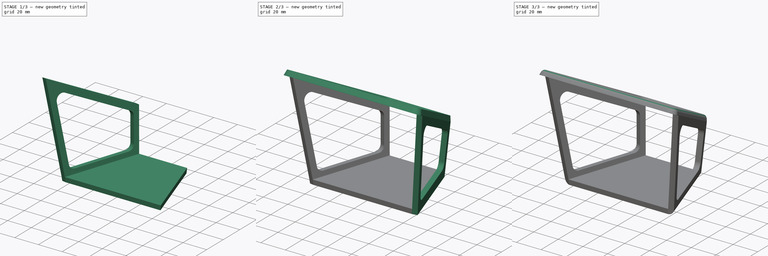
[diagram: build sequence overview — one tinted view per stage of 3, left to right]
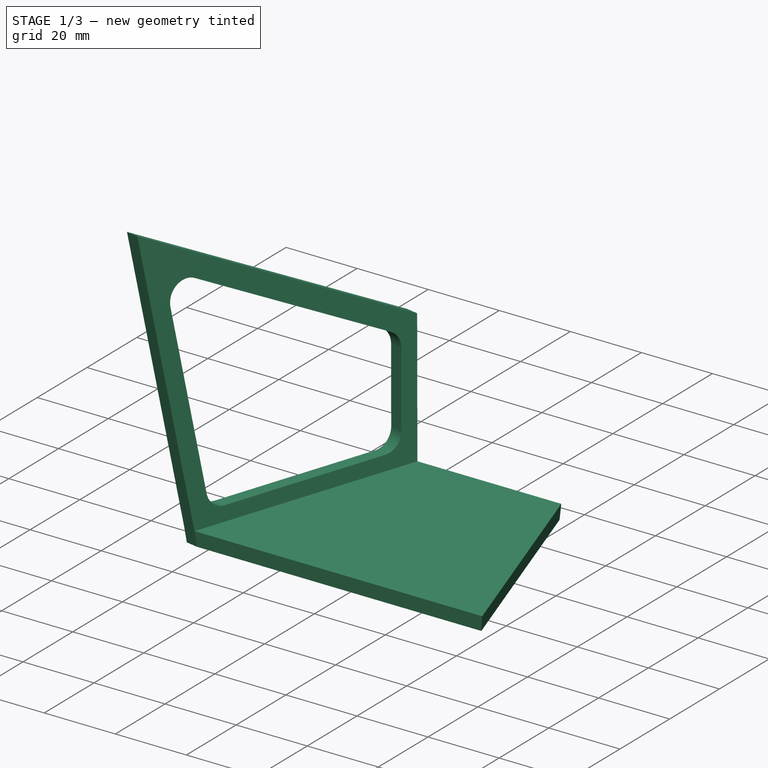
[diagram: stage 1 of 3 — iso view after this stage's code; geometry added in this stage tinted green]
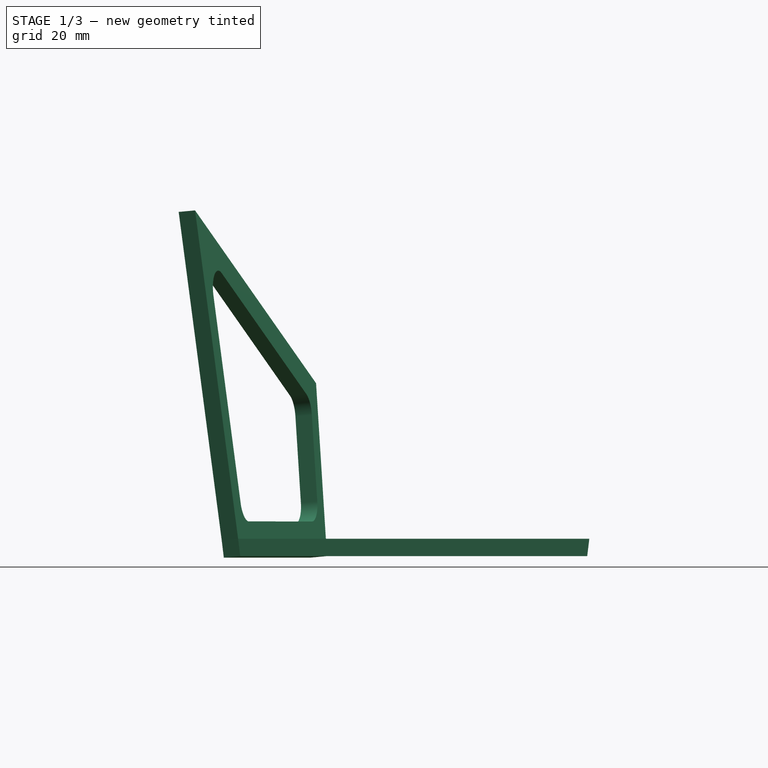
[diagram: stage 1 of 3 — front view after this stage's code; geometry added in this stage tinted green]
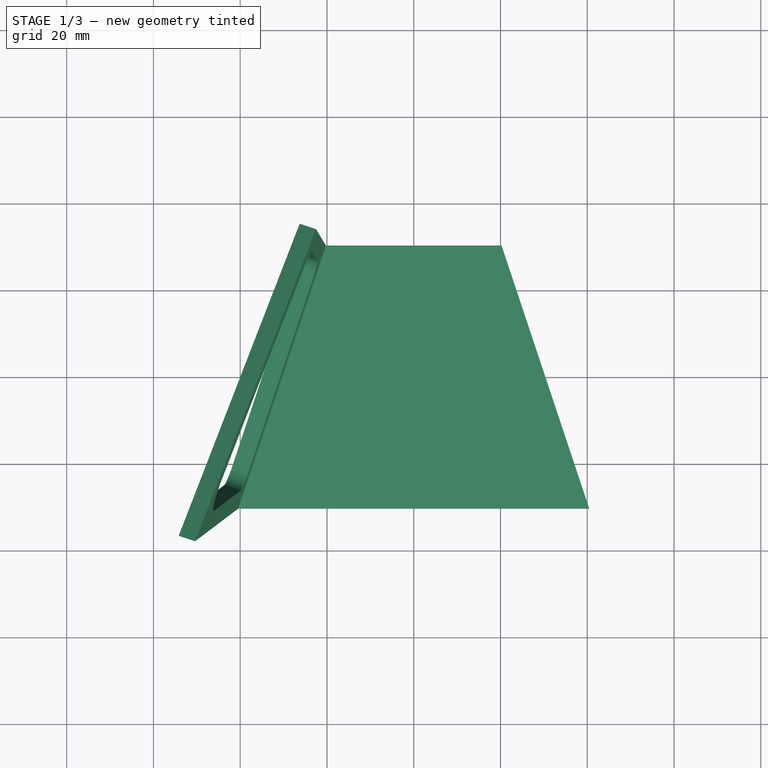
[diagram: stage 1 of 3 — top view after this stage's code; geometry added in this stage tinted green]
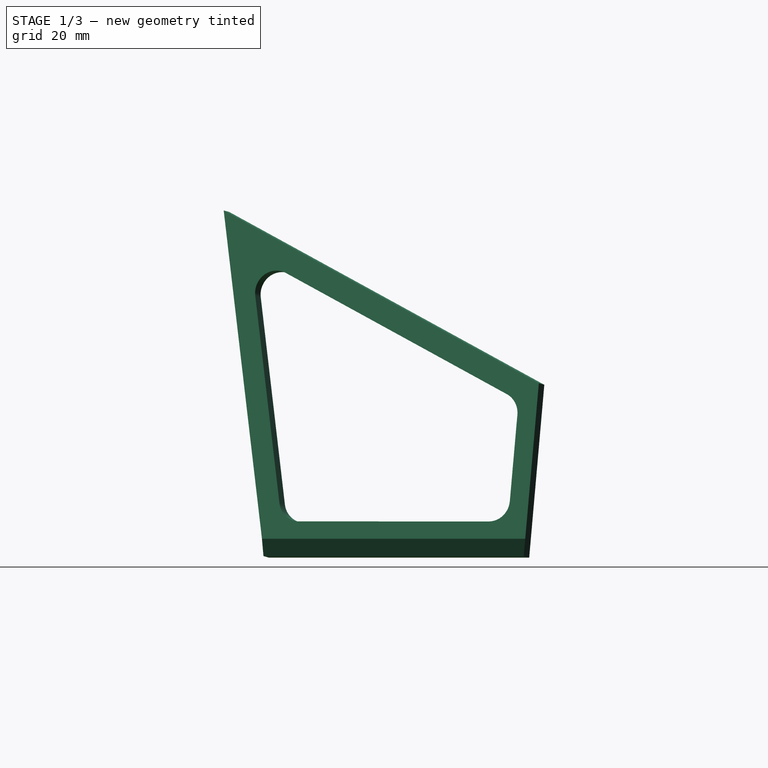
[diagram: stage 1 of 3 — right view after this stage's code; geometry added in this stage tinted green]
FCSTD DOCUMENT  (FreeCAD 0.20R29177 +426 (Git))
Label: TVHead
License: All rights reserved
LicenseURL: http://en.wikipedia.org/wiki/All_rights_reserved
objects: Sketcher::SketchObject×4, PartDesign::Pad×4, PartDesign::Plane×3, PartDesign::Fillet×2, Spreadsheet::Sheet×1, PartDesign::Body×1
note: 20 computed .brp shape members not serialized (recipe doc carries the construction recipe); baked Part::Feature solids carry a one-line shape summary decoded from their .brp

FEATURE [Sketcher::SketchObject] Sketch
  FullyConstrained = true
  MapMode = 5
  Support = -> [XY_Plane]
  expr: Constraints[6] = Spreadsheet.baseBackWidth
  expr: Constraints[7] = Spreadsheet.baseFrontWidth
  expr: Constraints[8] = Spreadsheet.baseDepth
  expr: Constraints[9] = Spreadsheet.baseDepth / 2
  sketch-geometry (4):
    g0: LineSegment StartX=-20 StartY=30 StartZ=0 EndX=20 EndY=30 EndZ=0
    g1: LineSegment StartX=20 StartY=30 StartZ=0 EndX=40 EndY=-30 EndZ=0
    g2: LineSegment StartX=40 StartY=-30 StartZ=0 EndX=-40 EndY=-30 EndZ=0
    g3: LineSegment StartX=-40 StartY=-30 StartZ=0 EndX=-20 EndY=30 EndZ=0
  constraints (10):
    c: Coincident(g0,g1)
    c: Coincident(g1,g2)
    c: Coincident(g2,g3)
    c: Coincident(g3,g0)
    c: Symmetric(g0,g0,g-2)
    c: Symmetric(g2,g1,g-2)
    c: DistanceX(g0,g0) = 40
    c: DistanceX(g2,g2) = 80
    c: DistanceY(g2,g0) = 60
    c: DistanceY(g-1,g0) = 30
FEATURE [Spreadsheet::Sheet] Spreadsheet
  cells = A2=baseBackWidth; B2(baseBackWidth)=40; A3=baseBackHeight; B3(baseBackHeight)=40; A4=baseFrontWidth; B4(baseFrontWidth)=80; A5=baseFrontHeight; B5(baseFrontHeight)=80; A6=baseDepth; B6(baseDepth)=60; A7=thickness; B7(thickness)=4; A8=topOvershoot; B8(topOvershoot)=12
FEATURE [PartDesign::Pad] Pad  label="basePad"
  Direction = (0,0,1)
  Length = 4
  Length2 = 10
  Profile = -> Sketch
  ReferenceAxis = -> Sketch [N_Axis]
  TaperAngle = 5
  Type = 0
  expr: Length = Spreadsheet.thickness
FEATURE [PartDesign::Plane] DatumPlane
  Length = 145.375
  MapMode = 45
  Placement = pos=(-30.1848,5.3e-15,2.00387) rot=(0.732046,-0.118838,-0.67081;3.35838rad)
  ResizeMode = 0
  Support = -> [Pad]
  Width = 135.937
FEATURE [Sketcher::SketchObject] Sketch001
  ExternalGeometry = -> [Pad]
  FullyConstrained = true
  MapMode = 5
  Placement = pos=(-30.1848,7.1e-15,2.00387) rot=(0.732046,-0.118838,-0.67081;3.35838rad)
  Support = -> [DatumPlane]
  expr: Constraints[11] = Spreadsheet.baseBackHeight
  expr: Constraints[12] = Spreadsheet.baseFrontHeight
  expr: Constraints[13] = Spreadsheet.topOvershoot
  expr: Constraints[26] = Spreadsheet.thickness
  expr: Constraints[27] = Spreadsheet.thickness
  expr: Constraints[32] = Spreadsheet.thickness
  sketch-geometry (14):
    g0: LineSegment StartX=2.00784 StartY=-31.6814 StartZ=0 EndX=2.01519 EndY=31.5641 EndZ=0
    g1: LineSegment StartX=2.01519 StartY=31.5641 StartZ=0 EndX=-2.00003 EndY=32.0501 EndZ=0
    g2: LineSegment StartX=-2.00003 StartY=32.0501 StartZ=0 EndX=-77.9848 EndY=43.5641 EndZ=0
    g3: LineSegment StartX=-77.9848 StartY=43.5641 StartZ=0 EndX=-37.9922 EndY=-34.1895 EndZ=0
    g4: LineSegment StartX=-37.9922 StartY=-34.1895 StartZ=0 EndX=-2.00747 EndY=-31.9332 EndZ=0
    g5: LineSegment StartX=-2.00747 StartY=-31.9332 StartZ=0 EndX=2.00784 EndY=-31.6814 EndZ=0
    g6: LineSegment StartX=-58.2389 StartY=35.3133 StartZ=0 EndX=-10.3069 EndY=28.0501 EndZ=0
    g7: LineSegment StartX=-6.00747 StartY=23.0501 StartZ=0 EndX=-6.00747 EndY=-22.9332 EndZ=0
    g8: LineSegment StartX=-10.7038 StartY=-27.9332 StartZ=0 EndX=-30.7038 EndY=-29.1872 EndZ=0
    g9: LineSegment StartX=-35.4723 StartY=-26.4787 StartZ=0 EndX=-63.4936 EndY=28.0002 EndZ=0
    g10: ArcOfCircle CenterX=-58.9965 CenterY=30.3133 CenterZ=0 NormalX=0 NormalY=0 NormalZ=1 AngleXU=0 Radius=5.05708 StartAngle=1.42041 EndAngle=3.61666
    g11: ArcOfCircle CenterX=-11.0645 CenterY=23.0501 CenterZ=0 NormalX=0 NormalY=0 NormalZ=1 AngleXU=0 Radius=5.05708 StartAngle=0 EndAngle=1.42041
    g12: ArcOfCircle CenterX=-11.0173 CenterY=-22.9332 CenterZ=0 NormalX=0 NormalY=0 NormalZ=1 AngleXU=0 Radius=5.00982 StartAngle=4.77501 EndAngle=6.28319
    g13: ArcOfCircle CenterX=-31.0173 CenterY=-24.1872 CenterZ=0 NormalX=0 NormalY=0 NormalZ=1 AngleXU=0 Radius=5.00982 StartAngle=3.61666 EndAngle=4.77501
  constraints (34):
    c: Coincident(g0,g-5)
    c: Coincident(g0,g-3)
    c: Coincident(g0,g1)
    c: Coincident(g1,g-4)
    c: Coincident(g1,g2)
    c: Coincident(g2,g3)
    c: Coincident(g3,g4)
    c: Coincident(g4,g-6)
    c: Coincident(g4,g5)
    c: Coincident(g5,g0)
    c: Parallel(g4,g5)
    c: DistanceX(g3,g0) = 40
    c: DistanceX(g2,g0) = 80
    c: DistanceY(g0,g2) = 12
    c: Vertical(g7)
    c: Tangent(g6,g10) = 1.5708
    c: Tangent(g9,g10) = 1.5708
    c: Tangent(g6,g11) = 1.5708
    c: Tangent(g7,g11) = 1.5708
    c: Tangent(g7,g12) = 1.5708
    c: Tangent(g8,g12) = 1.5708
    c: Tangent(g8,g13) = 1.5708
    c: Tangent(g9,g13) = 1.5708
    c: Parallel(g8,g4)
    c: Parallel(g6,g2)
    c: Parallel(g9,g3)
    c: DistanceX(g7,g4) = 4
    c: DistanceY(g4,g8) = 4
    c: DistanceY(g8,g13) = 5
    c: DistanceY(g8,g12) = 5
    c: DistanceY(g10,g6) = 5
    c: DistanceY(g11,g6) = 5
    c: DistanceY(g6,g1) = 4
    c: DistanceX(g13,g12) = 20
FEATURE [PartDesign::Pad] Pad001
  BaseFeature = -> Pad
  Direction = (-0.945073,0.315024,-0.0871557)
  Length = 4
  Length2 = 10
  Profile = -> Sketch001
  ReferenceAxis = -> Sketch001 [N_Axis]
  Type = 0
  expr: Length = Spreadsheet.thickness
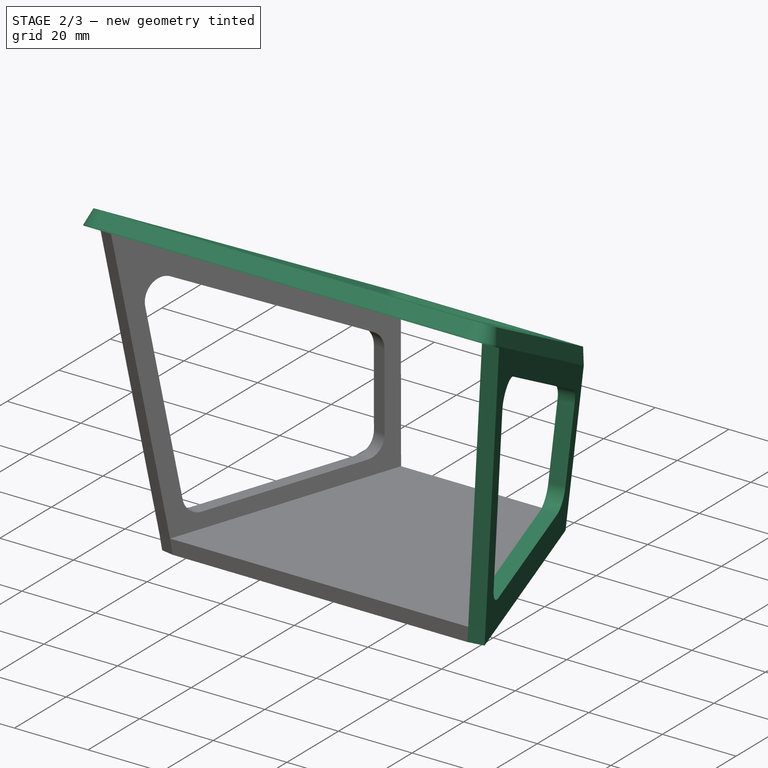
[diagram: stage 2 of 3 — iso view after this stage's code; geometry added in this stage tinted green]
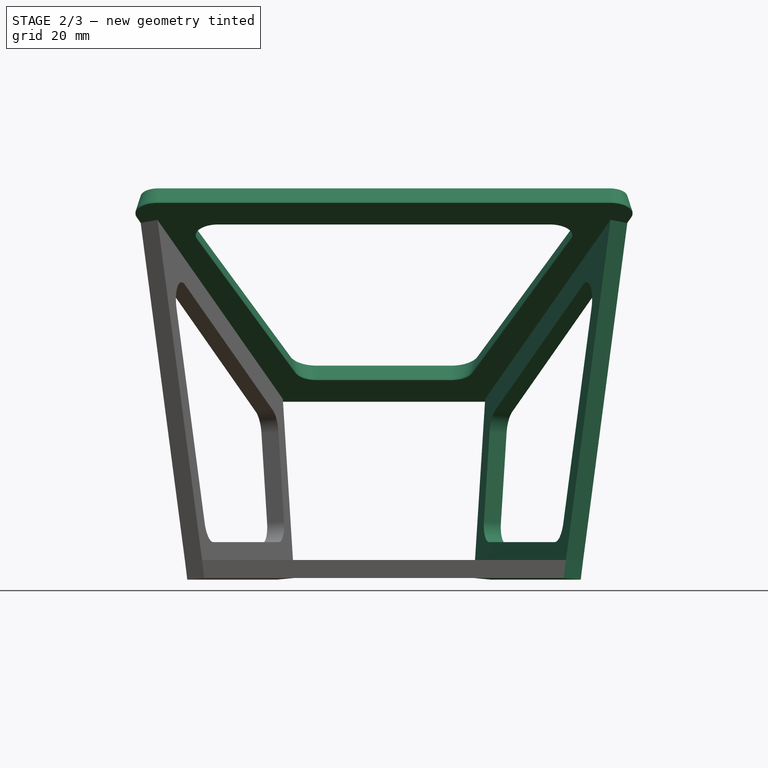
[diagram: stage 2 of 3 — front view after this stage's code; geometry added in this stage tinted green]
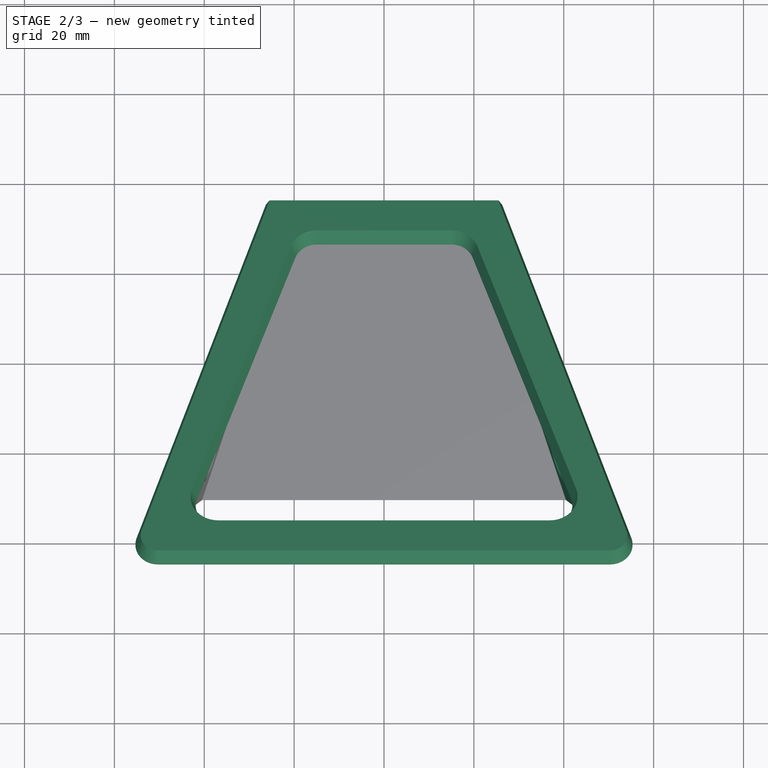
[diagram: stage 2 of 3 — top view after this stage's code; geometry added in this stage tinted green]
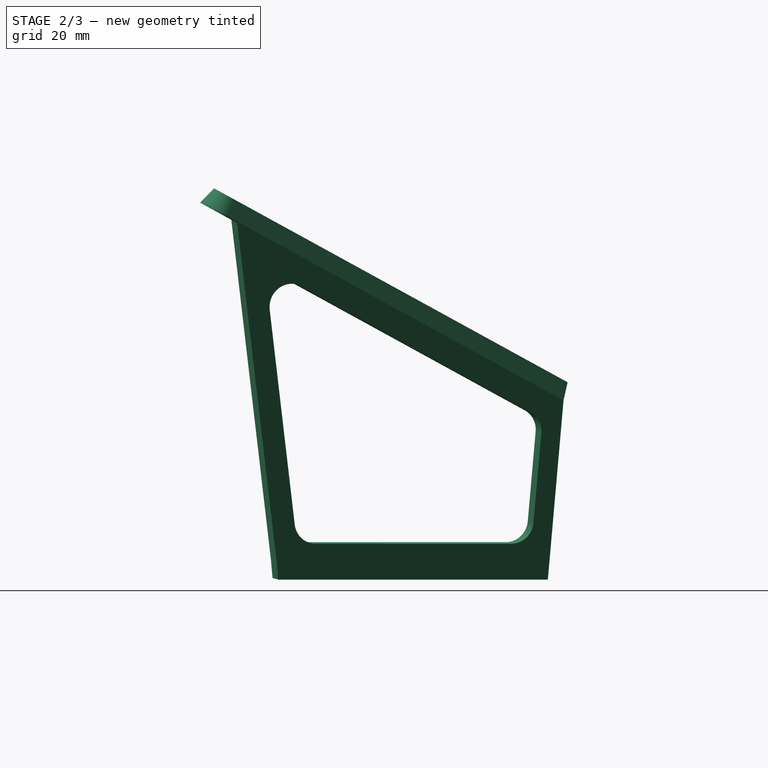
[diagram: stage 2 of 3 — right view after this stage's code; geometry added in this stage tinted green]
FEATURE [PartDesign::Plane] DatumPlane001
  Length = 145.375
  MapMode = 45
  Placement = pos=(30.1848,-1.8e-15,2.00387) rot=(0.732046,0.118838,0.67081;3.35838rad)
  ResizeMode = 0
  Support = -> [Pad001]
  Width = 135.937
FEATURE [Sketcher::SketchObject] Sketch002
  ExternalGeometry = -> [Pad001]
  FullyConstrained = true
  MapMode = 5
  Placement = pos=(30.1848,1.8e-15,2.00387) rot=(0.732046,0.118838,0.67081;3.35838rad)
  Support = -> [DatumPlane001]
  expr: Constraints[10] = Spreadsheet.topOvershoot
  expr: Constraints[11] = Spreadsheet.baseFrontHeight
  expr: Constraints[12] = Spreadsheet.baseBackHeight
  expr: Constraints[30] = Spreadsheet.thickness
  expr: Constraints[31] = Spreadsheet.thickness
  expr: Constraints[33] = Spreadsheet.thickness
  sketch-geometry (14):
    g0: LineSegment StartX=-2.01519 StartY=31.5641 StartZ=0 EndX=-2.00784 EndY=-31.6814 EndZ=0
    g1: LineSegment StartX=-2.00784 StartY=-31.6814 StartZ=0 EndX=2.00747 EndY=-31.9332 EndZ=0
    g2: LineSegment StartX=2.00747 StartY=-31.9332 StartZ=0 EndX=37.9922 EndY=-34.1895 EndZ=0
    g3: LineSegment StartX=37.9922 StartY=-34.1895 StartZ=0 EndX=77.9848 EndY=43.5641 EndZ=0
    g4: LineSegment StartX=77.9848 StartY=43.5641 StartZ=0 EndX=2.00003 EndY=32.0501 EndZ=0
    g5: LineSegment StartX=2.00003 StartY=32.0501 StartZ=0 EndX=-2.01519 EndY=31.5641 EndZ=0
    g6: LineSegment StartX=63.5316 StartY=28.1048 StartZ=0 EndX=35.4538 EndY=-26.484 EndZ=0
    g7: LineSegment StartX=30.6946 StartY=-29.1872 StartZ=0 EndX=10.6946 EndY=-27.9332 EndZ=0
    g8: LineSegment StartX=6.00747 StartY=-22.943 StartZ=0 EndX=6.00747 EndY=23.1065 EndZ=0
    g9: LineSegment StartX=10.2584 StartY=28.0501 StartZ=0 EndX=58.3362 EndY=35.3354 EndZ=0
    g10: ArcOfCircle CenterX=59.0853 CenterY=30.3918 CenterZ=0 NormalX=0 NormalY=0 NormalZ=1 AngleXU=0 Radius=5 StartAngle=5.80812 EndAngle=8.00437
    g11: ArcOfCircle CenterX=11.0075 CenterY=23.1065 CenterZ=0 NormalX=0 NormalY=0 NormalZ=1 AngleXU=0 Radius=5 StartAngle=1.72118 EndAngle=3.14159
    g12: ArcOfCircle CenterX=11.0075 CenterY=-22.943 CenterZ=0 NormalX=0 NormalY=0 NormalZ=1 AngleXU=0 Radius=5 StartAngle=3.14159 EndAngle=4.64977
    g13: ArcOfCircle CenterX=31.0075 CenterY=-24.197 CenterZ=0 NormalX=0 NormalY=0 NormalZ=1 AngleXU=0 Radius=5 StartAngle=4.64977 EndAngle=5.80812
  constraints (34):
    c: Coincident(g0,g-4)
    c: Coincident(g0,g-6)
    c: Coincident(g0,g1)
    c: Coincident(g1,g-5)
    c: Coincident(g1,g2)
    c: Coincident(g2,g3)
    c: Coincident(g3,g4)
    c: Coincident(g4,g-3)
    c: Coincident(g4,g5)
    c: Coincident(g5,g0)
    c: DistanceY(g0,g3) = 12
    c: DistanceX(g0,g3) = 80
    c: DistanceX(g0,g2) = 40
    c: Parallel(g1,g2)
    c: Vertical(g8)
    c: Tangent(g6,g10) = 1.5708
    c: Tangent(g9,g10) = 1.5708
    c: Tangent(g9,g11) = 1.5708
    c: Tangent(g8,g11) = 1.5708
    c: Tangent(g8,g12) = 1.5708
    c: Tangent(g7,g12) = 1.5708
    c: Tangent(g7,g13) = 1.5708
    c: Tangent(g6,g13) = 1.5708
    c: Distance(g11,g9) = 5
    c: Distance(g10,g9) = 5
    c: Distance(g12,g8) = 5
    c: Distance(g13,g7) = 5
    c: Parallel(g7,g2)
    c: Parallel(g6,g3)
    c: Parallel(g9,g4)
    c: DistanceX(g1,g8) = 4
    c: DistanceY(g1,g7) = 4
    c: DistanceX(g12,g13) = 20
    c: DistanceY(g9,g4) = 4
FEATURE [PartDesign::Pad] Pad002
  BaseFeature = -> Pad001
  Direction = (0.945073,0.315024,-0.0871557)
  Length = 4
  Length2 = 10
  Profile = -> Sketch002
  ReferenceAxis = -> Sketch002 [N_Axis]
  Type = 0
  expr: Length = Spreadsheet.thickness
FEATURE [PartDesign::Plane] DatumPlane002
  Length = 134.08
  MapMode = 13
  Placement = pos=(-8.76434,-13.6915,66.0652) rot=(0,0.248209,0.968706;3.14159rad)
  ResizeMode = 0
  Support = -> [Pad002]
  Width = 148.535
FEATURE [Sketcher::SketchObject] Sketch003
  ExternalGeometry = -> [Pad002]
  FullyConstrained = true
  MapMode = 5
  Placement = pos=(-8.76434,-13.6915,66.0652) rot=(0,0.248209,0.968706;3.14159rad)
  Support = -> [DatumPlane002]
  expr: Constraints[44] = Spreadsheet.baseDepth * 1.2
  expr: Constraints[45] = Spreadsheet.baseBackWidth * 0.75
  sketch-geometry (24):
    g0: LineSegment StartX=-59.0667 StartY=36.7552 StartZ=0 EndX=41.538 EndY=36.7552 EndZ=0
    g1: LineSegment StartX=46.2767 StartY=30.1601 StartZ=0 EndX=45.4225 EndY=27.6224 EndZ=0
    g2: LineSegment StartX=45.4225 StartY=27.6224 StartZ=0 EndX=17.5287 EndY=-55.2448 EndZ=0
    g3: LineSegment StartX=17.5287 StartY=-55.2448 StartZ=0 EndX=-35.0573 EndY=-55.2448 EndZ=0
    g4: LineSegment StartX=-35.0573 StartY=-55.2448 StartZ=0 EndX=-62.9512 EndY=27.6224 EndZ=0
    g5: LineSegment StartX=-62.9512 StartY=27.6224 StartZ=0 EndX=-63.8054 EndY=30.1601 EndZ=0
    g6: LineSegment StartX=-45.6754 StartY=26.7552 StartZ=0 EndX=28.1467 EndY=26.7552 EndZ=0
    g7: LineSegment StartX=32.861 StartY=20.0892 StartZ=0 EndX=10.9499 EndY=-41.9108 EndZ=0
    g8: LineSegment StartX=6.23566 StartY=-45.2448 StartZ=0 EndX=-23.7643 EndY=-45.2448 EndZ=0
    g9: LineSegment StartX=-28.4786 StartY=-41.9108 StartZ=0 EndX=-50.3896 EndY=20.0892 EndZ=0
    g10: ArcOfCircle CenterX=-45.6754 CenterY=21.7552 CenterZ=0 NormalX=0 NormalY=0 NormalZ=1 AngleXU=0 Radius=5 StartAngle=1.5708 EndAngle=3.4813
    g11: ArcOfCircle CenterX=28.1467 CenterY=21.7552 CenterZ=0 NormalX=0 NormalY=0 NormalZ=1 AngleXU=0 Radius=5 StartAngle=5.94348 EndAngle=7.85398
    g12: ArcOfCircle CenterX=6.23566 CenterY=-40.2448 CenterZ=0 NormalX=0 NormalY=0 NormalZ=1 AngleXU=0 Radius=5 StartAngle=4.71239 EndAngle=5.94348
    g13: ArcOfCircle CenterX=-23.7643 CenterY=-40.2448 CenterZ=0 NormalX=0 NormalY=0 NormalZ=1 AngleXU=0 Radius=5 StartAngle=3.4813 EndAngle=4.71239
    g14: ArcOfCircle CenterX=-59.0667 CenterY=31.7552 CenterZ=0 NormalX=0 NormalY=0 NormalZ=1 AngleXU=0 Radius=5 StartAngle=1.5708 EndAngle=3.46629
    g15: ArcOfCircle CenterX=41.538 CenterY=31.7552 CenterZ=0 NormalX=0 NormalY=0 NormalZ=1 AngleXU=0 Radius=5 StartAngle=5.95849 EndAngle=7.85398
    g16: GeomPoint X=-8.76434 Y=-45.2448 Z=0
    g17: GeomPoint X=-8.76434 Y=26.7552 Z=0
    g18: GeomPoint X=-8.76434 Y=-55.2448 Z=0
    g19: GeomPoint X=-8.76434 Y=36.7552 Z=0
    g20: GeomPoint X=-49.0043 Y=-13.8112 Z=0
    g21: GeomPoint X=31.4756 Y=-13.8112 Z=0
    g22: GeomPoint X=-39.4341 Y=-10.9108 Z=0
    g23: GeomPoint X=21.9054 Y=-10.9108 Z=0
  constraints (46):
    c: Horizontal(g0)
    c: Coincident(g1,g-3)
    c: Coincident(g1,g2)
    c: Coincident(g2,g-6)
    c: Coincident(g2,g3)
    c: Coincident(g3,g-5)
    c: Coincident(g3,g4)
    c: Coincident(g4,g5)
    c: Coincident(g4,g-4)
    c: Parallel(g4,g5)
    c: Parallel(g1,g2)
    c: Horizontal(g6)
    c: Horizontal(g8)
    c: Tangent(g6,g10) = 1.5708
    c: Tangent(g9,g10) = 1.5708
    c: Tangent(g6,g11) = 1.5708
    c: Tangent(g7,g11) = 1.5708
    c: Tangent(g7,g12) = 1.5708
    c: Tangent(g8,g12) = 1.5708
    c: Tangent(g8,g13) = 1.5708
    c: Tangent(g9,g13) = 1.5708
    c: Tangent(g0,g14) = 1.5708
    c: Tangent(g5,g14) = 1.5708
    c: Tangent(g0,g15) = 1.5708
    c: Tangent(g1,g15) = 1.5708
    c: DistanceY(g10,g6) = 5
    c: DistanceY(g11,g6) = 5
    c: DistanceY(g8,g13) = 5
    c: DistanceY(g8,g12) = 5
    c: DistanceY(g14,g0) = 5
    c: DistanceY(g15,g0) = 5
    c: DistanceY(g3,g8) = 10
    c: Symmetric(g6,g6,g17)
    c: Symmetric(g8,g8,g16)
    c: Symmetric(g3,g2,g18)
    c: Vertical(g16,g18)
    c: Symmetric(g0,g0,g19)
    c: Vertical(g19,g17)
    c: DistanceY(g17,g19) = 10
    c: Symmetric(g4,g3,g20)
    c: Symmetric(g2,g1,g21)
    c: Symmetric(g9,g9,g22)
    c: Symmetric(g7,g7,g23)
    c: Distance(g20,g22) = 10
    c: DistanceY(g16,g17) = 72
    c: DistanceX(g8,g8) = 30
FEATURE [PartDesign::Pad] Pad003  label="topPad"
  AlongSketchNormal = false
  BaseFeature = -> Pad002
  Direction = (2e-16,0.480884,0.876784)
  Length = 0.3
  Length2 = 4
  Profile = -> Sketch003
  ReferenceAxis = -> Sketch003 [N_Axis]
  Reversed = true
  TaperAngle2 = -16
  Type = 4
  expr: Length = 0.3
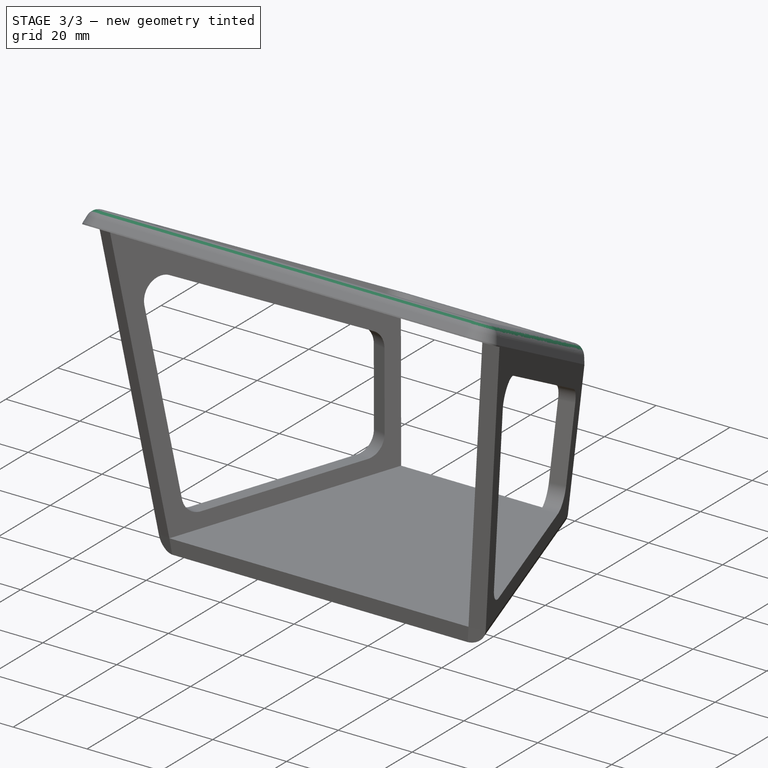
[diagram: stage 3 of 3 — iso view after this stage's code; geometry added in this stage tinted green]
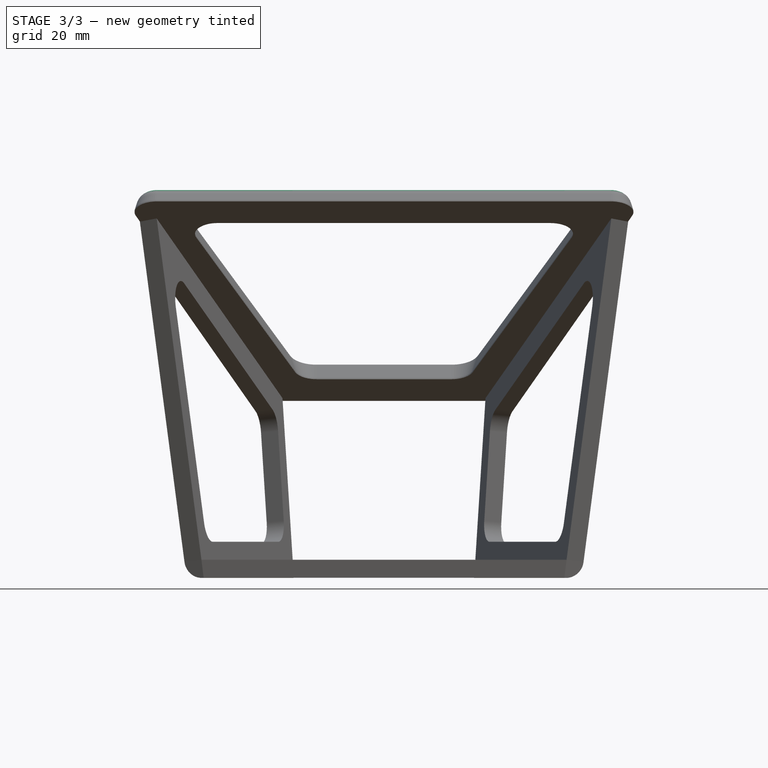
[diagram: stage 3 of 3 — front view after this stage's code; geometry added in this stage tinted green]
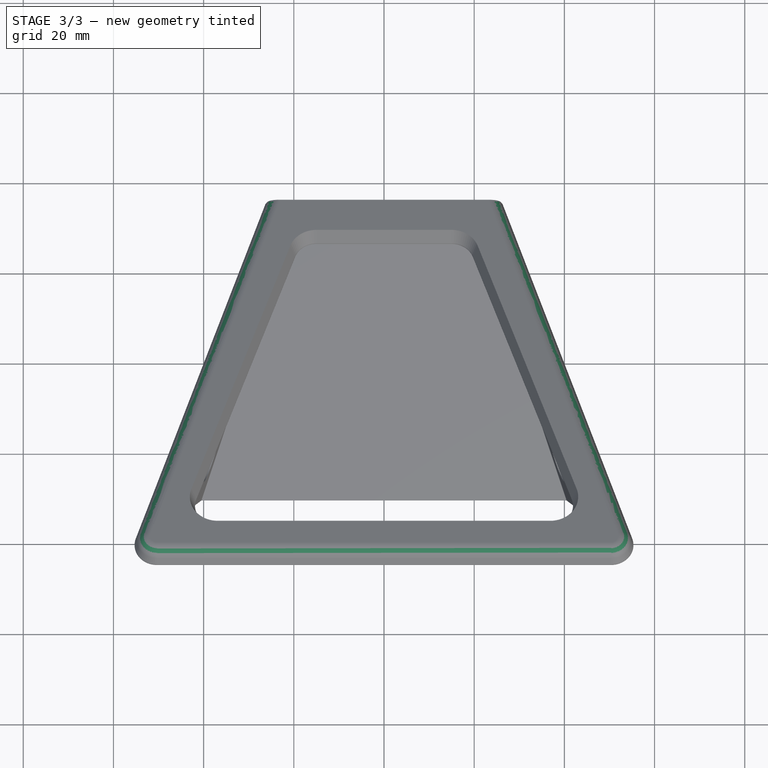
[diagram: stage 3 of 3 — top view after this stage's code; geometry added in this stage tinted green]
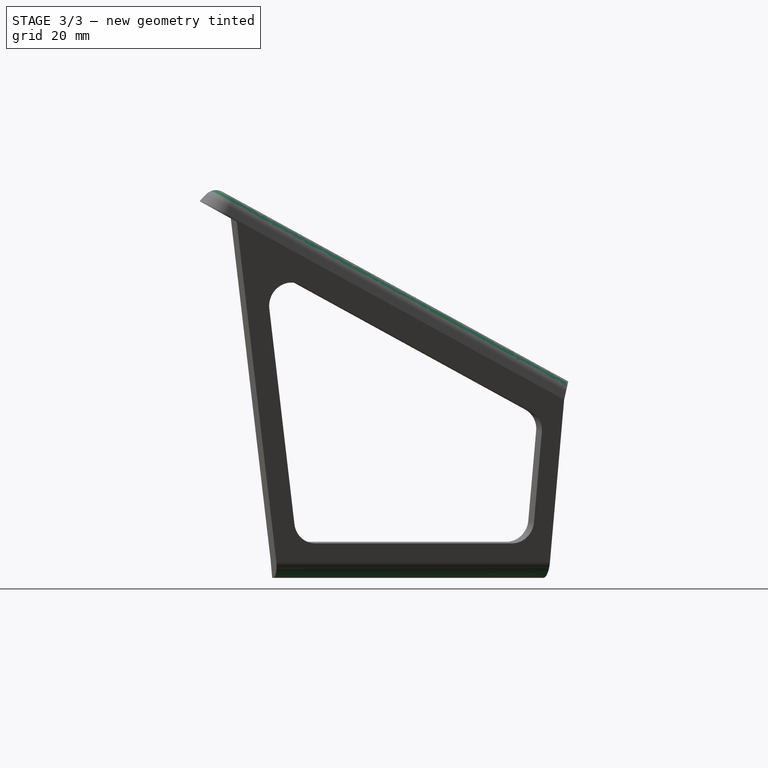
[diagram: stage 3 of 3 — right view after this stage's code; geometry added in this stage tinted green]
FEATURE [PartDesign::Fillet] Fillet
  Base = -> Pad003 [Edge154]
  BaseFeature = -> Pad003
  Radius = 3
  SupportTransform = false
  UseAllEdges = false
FEATURE [PartDesign::Fillet] Fillet001
  Base = -> Fillet [Edge110,Edge12]
  BaseFeature = -> Fillet
  Radius = 3.9
  SupportTransform = false
  UseAllEdges = false
FEATURE [PartDesign::Body] Body
  Group = -> [Sketch,Pad,DatumPlane,Sketch001,Pad001,DatumPlane001,Sketch002,Pad002,DatumPlane002,Sketch003,Pad003,Fillet,Fillet001]
  Origin = -> Origin
  Tip = -> Fillet001
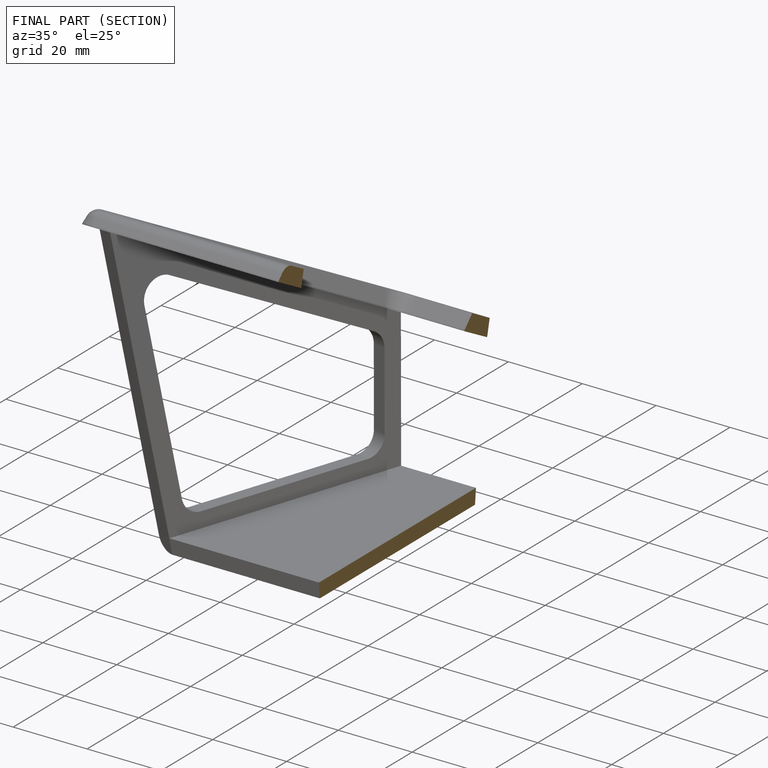
[diagram: finished part — half-section view (interior)]
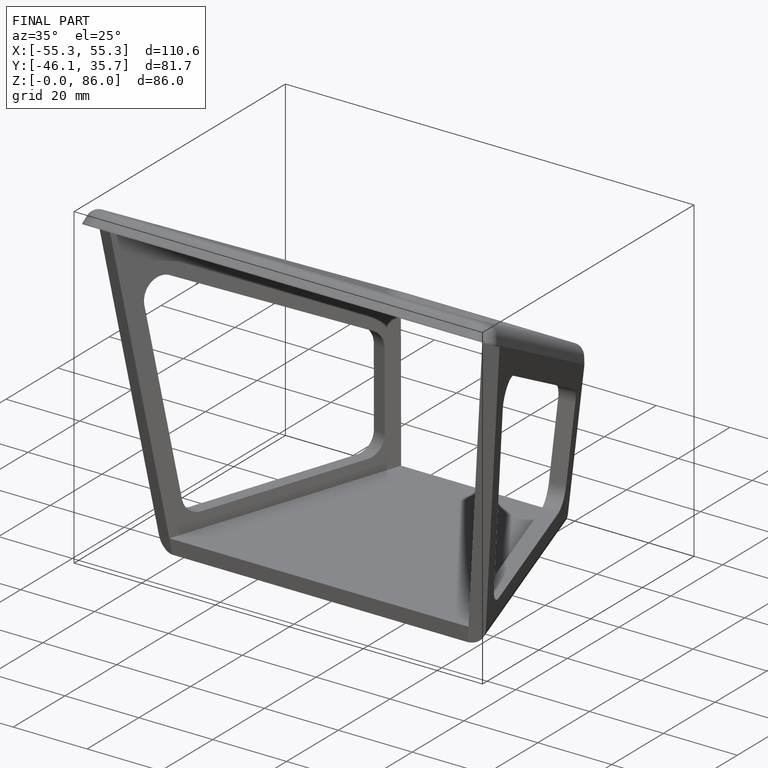
[diagram: finished part — iso view with bounding-box wireframe]
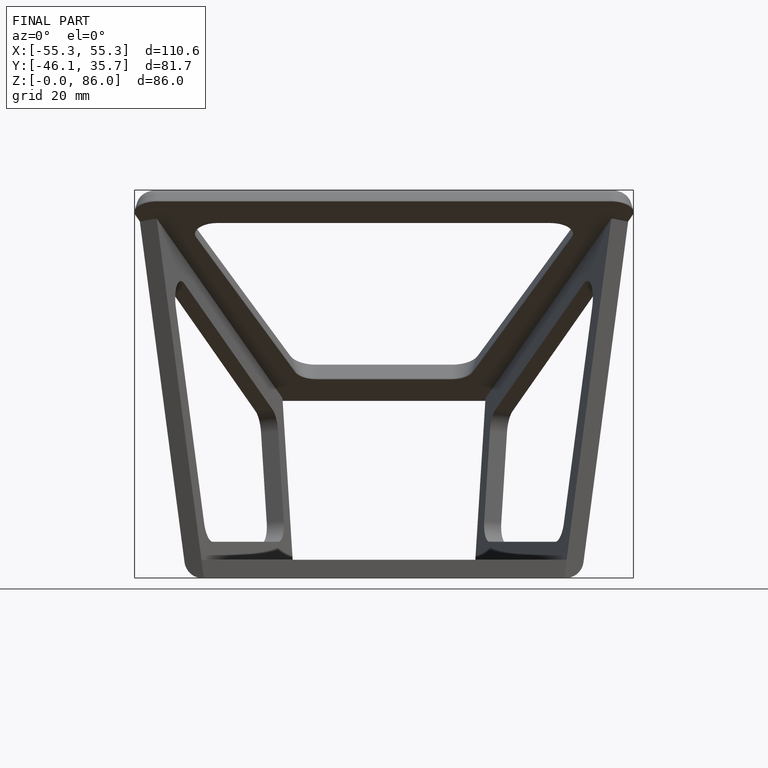
[diagram: finished part — front view with bounding-box wireframe]
